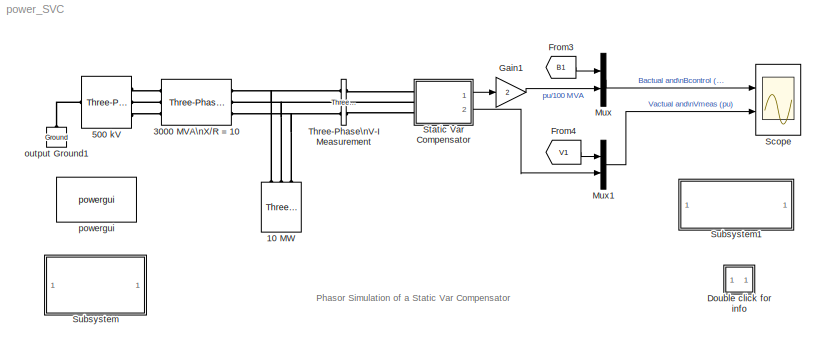
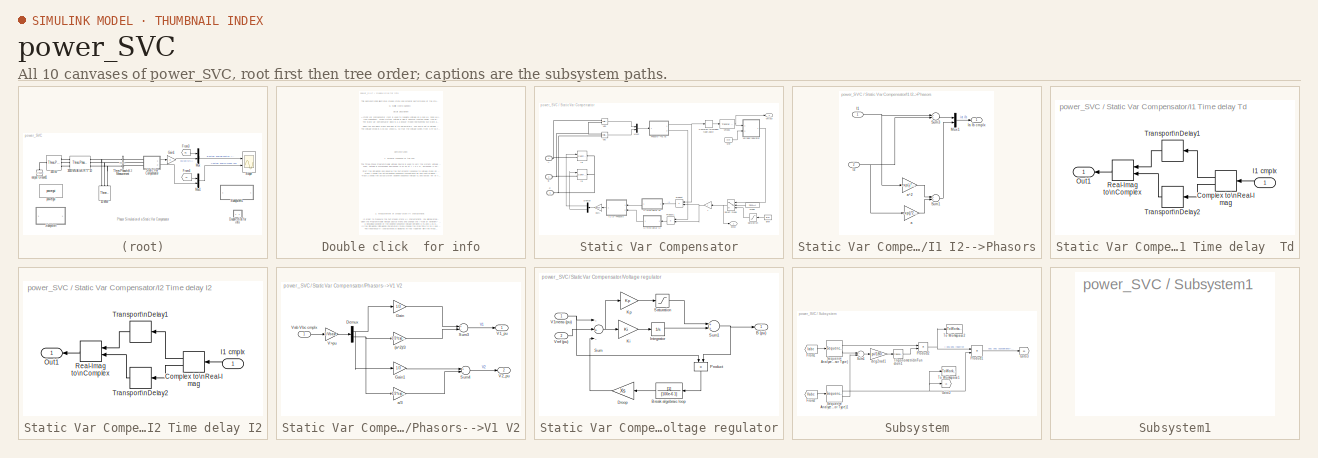
[diagram: thumbnail index - all 10 canvases of the model, root first then tree order]
MODEL power_SVC
KIND model
BLOCK [Reference] 10 MW  REF=powerlib/Elements/Three-Phase\nSeries RLC Load
  ActivePower = 10e6
  AttributesFormatString = \\n
  CapacitivePower = 0
  Configuration = Y (grounded)
  InductivePower = 0
  LConnTagsString = A|B|C
  LeftPortType = p1
  Measurements = None
  NominalFrequency = 60
  NominalVoltage = 500e3
  PhysicalDomain = powersysdomain
  Ports = [0, 0, 0, 0, 0, 3]
  RightPortType = p1
  SourceBlock = powerlib/Elements/Three-Phase\nSeries RLC Load
  SourceType = Three-Phase Series RLC Load
  SubClassName = unknown
BLOCK [Reference] 3000 MVA\nX//R = 10  REF=powerlib/Elements/Three-Phase\nSeries RLC Branch
  AttributesFormatString = \\n
  Capacitance = inf
  Inductance = 500e3^2/3000e6/(2*pi*60)
  LConnTagsString = A|B|C
  LeftPortType = p1
  Measurements = None
  PhysicalDomain = powersysdomain
  Ports = [0, 0, 0, 0, 0, 3, 3]
  RConnTagsString = A|B|C
  Resistance = 500e3^2/3000e6/10
  RightPortType = p1
  SourceBlock = powerlib/Elements/Three-Phase\nSeries RLC Branch
  SourceType = Three-Phase Series RLC Branch
  SubClassName = unknown
BLOCK [Reference] 500 kV  REF=powerlib/Electrical\nSources/Three-Phase\nProgrammable\nVoltage Source
  Amplitudes = [ 1  0.97  1.03  1]
  HarmonicA = [3 0.2 -25 0]
  HarmonicB = [2 0.15 35 2]
  HarmonicGeneration = off
  Ports = [0, 0, 0, 0, 0, 1, 3]
  PositiveSequence = [500e3  0 60]
  ShowPortLabels = on
  SourceBlock = powerlib/Electrical\nSources/Three-Phase\nProgrammable\nVoltage Source
  SourceType = Three-Phase Programmable Voltage Source
  TimeValues = [ 0  0.1 0.4  0.7]
  Timing = [0.05  3]
  VariationEntity = Amplitude
  VariationFrequency = 0.05
  VariationMagnitude = 0.25
  VariationPhaseA = off
  VariationRate = 10
  VariationStep = 0.5
  VariationTiming = [0 20]
  VariationType = Table of time-amplitude pairs
BLOCK [SubSystem] Double click  for info
  MaskDisplay = disp('?')
  MaskIconFrame = on
  MaskIconOpaque = on
  MaskIconRotate = none
  MaskIconUnits = autoscale
  MinAlgLoopOccurrences = off
  Ports = []
  RTWSystemCode = Auto
  TreatAsAtomicUnit = off
BLOCK [From] From3
  CloseFcn = tagdialog Close
  DialogController = Simulink.DDGSource
  GotoTag = B1
BLOCK [From] From4
  CloseFcn = tagdialog Close
  DialogController = Simulink.DDGSource
  GotoTag = V1
BLOCK [Gain] Gain1
  Gain = 2
BLOCK [Mux] Mux
  DisplayOption = bar
  Inputs = 2
  Ports = [2, 1]
BLOCK [Mux] Mux1
  DisplayOption = bar
  Inputs = 2
  Ports = [2, 1]
BLOCK [Scope] Scope
  DataFormat = StructureWithTime
  NumInputPorts = 2
  Ports = [2]
  SaveName = ScopeData1
  TimeRange = 1
  YMax = 1~1.08
  YMin = -1~0.96
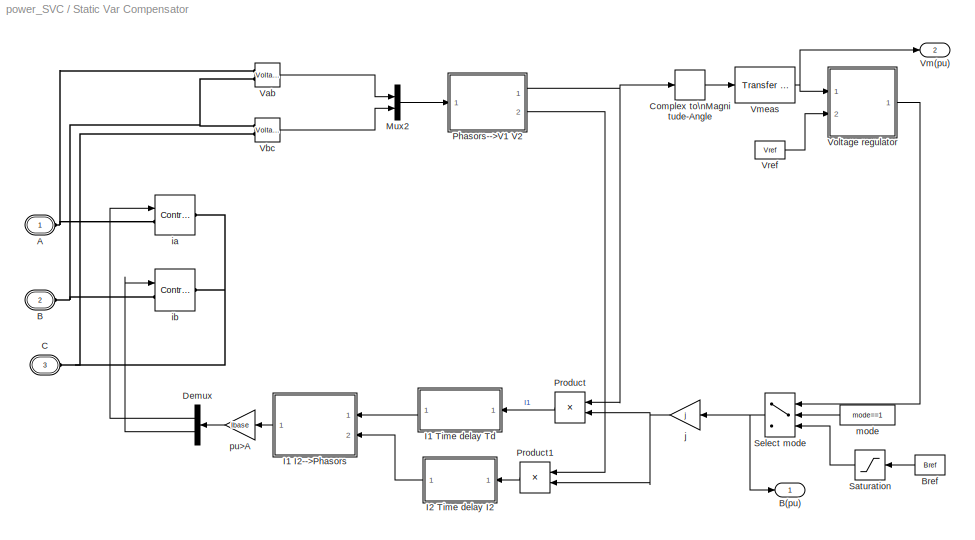
BLOCK [SubSystem] Static Var Compensator
  AncestorBlock = powerlib/Phasor\nElements/Static Var Compensator
  CloseFcn = %3phaseVImeasurement
  LoadFcn = find_system(gcs,'FollowLinks', 'on', 'LookUnderMasks', 'all');
  MaskCallbackString = powericon('psbcallbacks',gcb,'SVCblock');|||||||||
  MaskDescription = This block implements a  phasor model of a three-phase, three-wire Static Var Compensator (SVC).\n\nThe B output signal (SVC susceptance in pu/Pbase)  is the output of the voltage regulator or the reference susceptance Bref in var control mode.\nThe Vm output is the measured positive-sequence voltage (pu).
  MaskDisplay = \n
  MaskEnableString = on,on,on,on,on,on,on,on,on,on
  MaskHelp = web(psbhelp)
  MaskIconFrame = on
  MaskIconOpaque = on
  MaskIconRotate = none
  MaskIconUnits = autoscale
  MaskInitialization = Qc_nom=Qnom(1);\nQl_nom=Qnom(2);\nBmax=Qc_nom/Pbase;\nBmin=Ql_nom/Pbase;\nVbase=Vnom/sqrt(3)*sqrt(2);\nIbase=Pbase/Vnom/sqrt(3)*sqrt(2);\nKp=Kp_Ki(1);\nKi=Kp_Ki(2);;
  MaskPromptString = Mode of operation|Nominal voltage (Vrms Ph-Ph):|Reactive power limits [Qc(var>0)  Ql(var<0)]:|Three-phase base power Pbase (VA):|Reference voltage Vref  (pu):|Droop Xs (pu/Pbase):|Voltage regulator [Kp(puB/puV)  Ki(puB/puV/s)]: |Bref  for var control mode (pu/Pbase):|Time constant of voltage measurement system Tm (s):|Average time delay due to thyristor valves firing Td (s):
  MaskStyleString = popup(Voltage regulation|Var control (Fixed susceptance Bref)),edit,edit,edit,edit,edit,edit,edit,edit,edit
  MaskTabNameString = ,,,,,,,,,
  MaskToolTipString = on,on,on,on,on,on,on,on,on,on
  MaskTunableValueString = on,on,on,on,on,on,on,on,on,on
  MaskType = Static Var Compensator (Phasor Type)
  MaskValueString = Voltage regulation|500e3|[200e6  -100e6]|200e6|1.0|0.03|[0  300]|0.5|8e-3|4e-3
  MaskVarAliasString = ,,,,,,,,,
  MaskVariables = mode=@1;Vnom=@2;Qnom=@3;Pbase=@4;Vref=@5;Xs=@6;Kp_Ki=@7;Bref=@8;Tm=@9;Td=@10;
  MaskVisibilityString = on,on,on,on,on,on,on,off,on,on
  MinAlgLoopOccurrences = off
  Ports = [0, 2, 0, 0, 0, 3]
  RTWSystemCode = Auto
  TreatAsAtomicUnit = off
BLOCK [PMIOPort] Static Var Compensator/A
  Port = 1
  Side = Left
BLOCK [PMIOPort] Static Var Compensator/B
  Port = 2
  Side = Left
BLOCK [Outport] Static Var Compensator/B(pu)
  BusOutputAsStruct = off
  IconDisplay = Port number
BLOCK [Constant] Static Var Compensator/Bref
  Value = Bref
BLOCK [PMIOPort] Static Var Compensator/C
  Port = 3
  Side = Left
BLOCK [ComplexToMagnitudeAngle] Static Var Compensator/Complex to\nMagnitude-Angle
  Output = Magnitude
  Ports = [1, 1]
BLOCK [Demux] Static Var Compensator/Demux
  Outputs = 2
  Ports = [1, 2]
BLOCK [SubSystem] Static Var Compensator/I1 I2-->Phasors
  MinAlgLoopOccurrences = off
  Ports = [2, 1]
  RTWSystemCode = Auto
  TreatAsAtomicUnit = off
BLOCK [Inport] Static Var Compensator/I1 I2-->Phasors/I1
  IconDisplay = Port number
  LatchInput = off
  Port = 1
BLOCK [Inport] Static Var Compensator/I1 I2-->Phasors/I2
  IconDisplay = Port number
  LatchInput = off
  Port = 2
BLOCK [Outport] Static Var Compensator/I1 I2-->Phasors/Ia Ib cmplx
  BusOutputAsStruct = off
  IconDisplay = Port number
BLOCK [Mux] Static Var Compensator/I1 I2-->Phasors/Mux1
  DisplayOption = bar
  Inputs = 2
  Ports = [2, 1]
BLOCK [Sum] Static Var Compensator/I1 I2-->Phasors/Sum1
  Ports = [2, 1]
BLOCK [Sum] Static Var Compensator/I1 I2-->Phasors/Sum3
  Ports = [2, 1]
BLOCK [Gain] Static Var Compensator/I1 I2-->Phasors/a
  Gain = exp(j*2*pi/3)
BLOCK [Gain] Static Var Compensator/I1 I2-->Phasors/a^2
  Gain = exp(-j*2*pi/3)
BLOCK [SubSystem] Static Var Compensator/I1 Time delay  Td
  MinAlgLoopOccurrences = off
  Ports = [1, 1]
  RTWSystemCode = Auto
  TreatAsAtomicUnit = off
BLOCK [ComplexToRealImag] Static Var Compensator/I1 Time delay  Td/Complex to\nReal-Imag
  Output = Real and imag
  Ports = [1, 2]
BLOCK [Inport] Static Var Compensator/I1 Time delay  Td/I1 cmplx
  IconDisplay = Port number
  LatchInput = off
  Port = 1
BLOCK [Outport] Static Var Compensator/I1 Time delay  Td/Out1
  BusOutputAsStruct = off
  IconDisplay = Port number
BLOCK [RealImagToComplex] Static Var Compensator/I1 Time delay  Td/Real-Imag to\nComplex
  Input = Real and imag
  Ports = [2, 1]
BLOCK [TransportDelay] Static Var Compensator/I1 Time delay  Td/Transport\nDelay1
  DelayTime = Td
BLOCK [TransportDelay] Static Var Compensator/I1 Time delay  Td/Transport\nDelay2
  DelayTime = Td
BLOCK [SubSystem] Static Var Compensator/I2 Time delay I2
  MinAlgLoopOccurrences = off
  Ports = [1, 1]
  RTWSystemCode = Auto
  TreatAsAtomicUnit = off
BLOCK [ComplexToRealImag] Static Var Compensator/I2 Time delay I2/Complex to\nReal-Imag
  Output = Real and imag
  Ports = [1, 2]
BLOCK [Inport] Static Var Compensator/I2 Time delay I2/I1 cmplx
  IconDisplay = Port number
  LatchInput = off
  Port = 1
BLOCK [Outport] Static Var Compensator/I2 Time delay I2/Out1
  BusOutputAsStruct = off
  IconDisplay = Port number
BLOCK [RealImagToComplex] Static Var Compensator/I2 Time delay I2/Real-Imag to\nComplex
  Input = Real and imag
  Ports = [2, 1]
BLOCK [TransportDelay] Static Var Compensator/I2 Time delay I2/Transport\nDelay1
  DelayTime = Td
BLOCK [TransportDelay] Static Var Compensator/I2 Time delay I2/Transport\nDelay2
  DelayTime = Td
BLOCK [Mux] Static Var Compensator/Mux2
  DisplayOption = bar
  Inputs = 2
  Ports = [2, 1]
BLOCK [SubSystem] Static Var Compensator/Phasors-->V1 V2
  MinAlgLoopOccurrences = off
  Ports = [1, 2]
  RTWSystemCode = Auto
  TreatAsAtomicUnit = off
BLOCK [Gain] Static Var Compensator/Phasors-->V1 V2/(a^2)//3
  Gain = 1/3*exp(-j*2*pi/3)
BLOCK [Demux] Static Var Compensator/Phasors-->V1 V2/Demux
  Outputs = 2
  Ports = [1, 2]
BLOCK [Gain] Static Var Compensator/Phasors-->V1 V2/Gain
  Gain = 1/3
BLOCK [Gain] Static Var Compensator/Phasors-->V1 V2/Gain1
  Gain = 1/3
BLOCK [Sum] Static Var Compensator/Phasors-->V1 V2/Sum3
  Inputs = +-
  Ports = [2, 1]
BLOCK [Sum] Static Var Compensator/Phasors-->V1 V2/Sum4
  Inputs = +-
  Ports = [2, 1]
BLOCK [Outport] Static Var Compensator/Phasors-->V1 V2/V1_pu
  BusOutputAsStruct = off
  IconDisplay = Port number
BLOCK [Outport] Static Var Compensator/Phasors-->V1 V2/V2_pu
  BusOutputAsStruct = off
  IconDisplay = Port number
  Port = 2
BLOCK [Gain] Static Var Compensator/Phasors-->V1 V2/V>pu
  Gain = 1/Vbase
BLOCK [Inport] Static Var Compensator/Phasors-->V1 V2/Vab Vbc cmplx
  IconDisplay = Port number
  LatchInput = off
  Port = 1
BLOCK [Gain] Static Var Compensator/Phasors-->V1 V2/a//3
  Gain = 1/3*exp(j*2*pi/3)
BLOCK [Product] Static Var Compensator/Product
  Ports = [2, 1]
  RndMeth = Floor
BLOCK [Product] Static Var Compensator/Product1
  Ports = [2, 1]
  RndMeth = Floor
BLOCK [Saturate] Static Var Compensator/Saturation
  LowerLimit = Bmin
  UpperLimit = Bmax
BLOCK [Switch] Static Var Compensator/Select mode
  SaturateOnIntegerOverflow = off
  Threshold = 0.5
BLOCK [Reference] Static Var Compensator/Vab  REF=powerlib/Measurements/Voltage Measurement
  OutputType = Complex
  PSBequivalent = 0
  PhasorSimulation = on
  Ports = [0, 1, 0, 0, 0, 2]
  ShowPortLabels = on
  SourceBlock = powerlib/Measurements/Voltage Measurement
  SourceType = Voltage Measurement
BLOCK [Reference] Static Var Compensator/Vbc  REF=powerlib/Measurements/Voltage Measurement
  OutputType = Complex
  PSBequivalent = 0
  PhasorSimulation = on
  Ports = [0, 1, 0, 0, 0, 2]
  ShowPortLabels = on
  SourceBlock = powerlib/Measurements/Voltage Measurement
  SourceType = Voltage Measurement
BLOCK [Outport] Static Var Compensator/Vm(pu)
  BusOutputAsStruct = off
  IconDisplay = Port number
  Port = 2
BLOCK [Reference] Static Var Compensator/Vmeas  REF=simulink_extras/Additional\nLinear/Transfer Fcn\n(with initial outputs)
  D = [Tm  1]
  N = [1]
  Ports = [1, 1]
  ShowPortLabels = on
  SourceBlock = simulink_extras/Additional\nLinear/Transfer Fcn\n(with initial outputs)
  SourceType = Transfer Function with Initial Outputs
  U0 = Vref
  Y0 = Vref
BLOCK [SubSystem] Static Var Compensator/Voltage regulator
  MinAlgLoopOccurrences = off
  Ports = [2, 1]
  RTWSystemCode = Auto
  TreatAsAtomicUnit = off
BLOCK [Outport] Static Var Compensator/Voltage regulator/B (pu)
  BusOutputAsStruct = off
  IconDisplay = Port number
  InitialOutput = 0
BLOCK [TransferFcn] Static Var Compensator/Voltage regulator/Break algebraic loop
  Denominator = [100e-6 1]
BLOCK [Gain] Static Var Compensator/Voltage regulator/Droop
  Gain = Xs
BLOCK [Integrator] Static Var Compensator/Voltage regulator/Integrator
  LimitOutput = on
  LowerSaturationLimit = Bmin
  Ports = [1, 1]
  UpperSaturationLimit = Bmax
BLOCK [Gain] Static Var Compensator/Voltage regulator/Ki
  Gain = Ki
BLOCK [Gain] Static Var Compensator/Voltage regulator/Kp
  Gain = Kp
BLOCK [Product] Static Var Compensator/Voltage regulator/Product
  Ports = [2, 1]
  RndMeth = Floor
BLOCK [Saturate] Static Var Compensator/Voltage regulator/Saturation
  LowerLimit = Bmin
  UpperLimit = Bmax
BLOCK [Sum] Static Var Compensator/Voltage regulator/Sum
  Inputs = -+-
  Ports = [3, 1]
BLOCK [Sum] Static Var Compensator/Voltage regulator/Sum1
  InputSameDT = off
  OutDataTypeMode = Inherit via internal rule
  Ports = [2, 1]
BLOCK [Inport] Static Var Compensator/Voltage regulator/V1meas (pu)
  IconDisplay = Port number
  LatchInput = off
  Port = 1
BLOCK [Inport] Static Var Compensator/Voltage regulator/Vref (pu)
  IconDisplay = Port number
  LatchInput = off
  Port = 2
BLOCK [Constant] Static Var Compensator/Vref
  Value = Vref
BLOCK [Reference] Static Var Compensator/ia  REF=powerlib/Electrical\nSources/Controlled Current Source
  Amplitude = 0
  Description = source block
  Frequency = 0
  Initialize = off
  Measurements = None
  Phase = 0
  Ports = [1, 0, 0, 0, 0, 1, 1]
  ShowPortLabels = on
  SourceBlock = powerlib/Electrical\nSources/Controlled Current Source
  SourceType = AC
BLOCK [Reference] Static Var Compensator/ib  REF=powerlib/Electrical\nSources/Controlled Current Source
  Amplitude = 0
  Description = source block
  Frequency = 0
  Initialize = off
  Measurements = None
  Phase = 0
  Ports = [1, 0, 0, 0, 0, 1, 1]
  ShowPortLabels = on
  SourceBlock = powerlib/Electrical\nSources/Controlled Current Source
  SourceType = AC
BLOCK [Gain] Static Var Compensator/j
  Gain = j
BLOCK [Constant] Static Var Compensator/mode
  Value = mode==1
BLOCK [Gain] Static Var Compensator/pu>A
  Gain = Ibase
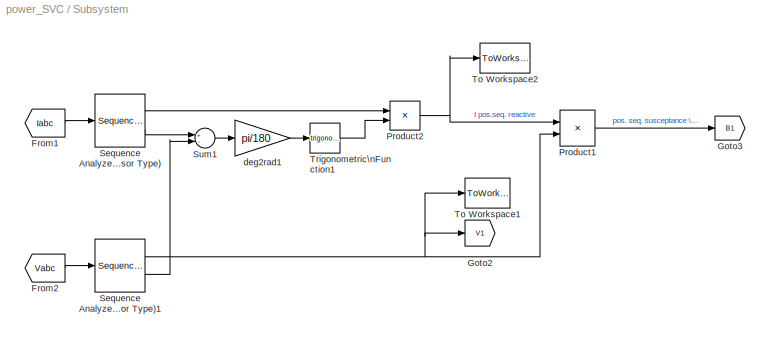
BLOCK [SubSystem] Subsystem
  MaskDisplay = disp('Signal Processing')
  MaskIconFrame = on
  MaskIconOpaque = on
  MaskIconRotate = none
  MaskIconUnits = autoscale
  MinAlgLoopOccurrences = off
  Ports = []
  RTWSystemCode = Auto
  TreatAsAtomicUnit = off
BLOCK [From] Subsystem/From1
  CloseFcn = tagdialog Close
  DialogController = Simulink.DDGSource
  GotoTag = Iabc
BLOCK [From] Subsystem/From2
  CloseFcn = tagdialog Close
  DialogController = Simulink.DDGSource
  GotoTag = Vabc
BLOCK [Goto] Subsystem/Goto2
  DialogController = Simulink.DDGSource
  GotoTag = V1
  TagVisibility = global
BLOCK [Goto] Subsystem/Goto3
  DialogController = Simulink.DDGSource
  GotoTag = B1
  TagVisibility = global
BLOCK [Product] Subsystem/Product1
  InputSameDT = off
  Inputs = */
  Ports = [2, 1]
  RndMeth = Floor
BLOCK [Product] Subsystem/Product2
  InputSameDT = off
  Inputs = **
  Ports = [2, 1]
  RndMeth = Floor
BLOCK [Reference] Subsystem/Sequence Analyzer\n(Phasor Type)  REF=powerlib_extras/Phasor\nLibrary/Sequence Analyzer\n(Phasor Type)
  Ports = [1, 2]
  ShowPortLabels = on
  SourceBlock = powerlib_extras/Phasor\nLibrary/Sequence Analyzer\n(Phasor Type)
  SourceType = Sequence Analyzer (Phasor Type)
  seq = Positive
BLOCK [Reference] Subsystem/Sequence Analyzer\n(Phasor Type)1  REF=powerlib_extras/Phasor\nLibrary/Sequence Analyzer\n(Phasor Type)
  Ports = [1, 2]
  ShowPortLabels = on
  SourceBlock = powerlib_extras/Phasor\nLibrary/Sequence Analyzer\n(Phasor Type)
  SourceType = Sequence Analyzer (Phasor Type)
  seq = Positive
BLOCK [Sum] Subsystem/Sum1
  InputSameDT = off
  Inputs = +-
  OutDataTypeMode = Inherit via internal rule
  Ports = [2, 1]
BLOCK [ToWorkspace] Subsystem/To Workspace1
  MaxDataPoints = inf
  SampleTime = -1
  SaveFormat = Array
  VariableName = V1
BLOCK [ToWorkspace] Subsystem/To Workspace2
  MaxDataPoints = inf
  SampleTime = -1
  SaveFormat = Array
  VariableName = I1_imag
BLOCK [Trigonometry] Subsystem/Trigonometric\nFunction1
  Ports = [1, 1]
BLOCK [Gain] Subsystem/deg2rad1
  Gain = pi/180
BLOCK [SubSystem] Subsystem1
  MaskDisplay = disp('Double click\\nto plot\\nV-I characteristic')
  MaskIconFrame = on
  MaskIconOpaque = on
  MaskIconRotate = none
  MaskIconUnits = autoscale
  MinAlgLoopOccurrences = off
  OpenFcn = open('power_SVC.fig')            \nif exist('I1_imag') & exist('V1')\n  hold on                        \n   plot(-I1_imag,V1)             \nend                              \n                                 \n                                 \n                                 \n
  Ports = []
  RTWSystemCode = Auto
  TreatAsAtomicUnit = off
BLOCK [Reference] Three-Phase\nV-I Measurement  REF=powerlib/Measurements/Three-Phase\nV-I Measurement
  CurrentMeasurement = yes
  Ipu = on
  LabelI = Iabc
  LabelV = Vabc
  OutputType = Complex
  PSBequivalent = 0
  Pbase = 100e6
  PhasorSimulation = on
  Ports = [0, 0, 0, 0, 0, 3, 3]
  SetLabelI = on
  SetLabelV = on
  ShowPortLabels = on
  SourceBlock = powerlib/Measurements/Three-Phase\nV-I Measurement
  SourceType = Three-Phase VI Measurement
  Vbase = 500e3
  VoltageMeasurement = phase-to-ground
  Vpu = on
BLOCK [Reference] output Ground1  REF=powerlib/Elements/Ground
  AttributesFormatString = \\n
  LConnTagsString = a
  LeftPortType = p1
  PhysicalDomain = powersysdomain
  Ports = [0, 0, 0, 0, 0, 1]
  RightPortType = p1
  SourceBlock = powerlib/Elements/Ground
  SourceType = Ground
  SubClassName = unknown
BLOCK [Reference] powergui  REF=powerlib/powergui
  DisplayStyle = 1
  Frange = [0:2:500]
  FreqAxis = off
  MaxFrequency = 1000
  Ports = []
  Priority = 2
  RmsSteady = 1
  ShowPortLabels = on
  SourceBlock = powerlib/powergui
  SourceType = PSB option menu block
  StartTime = 0.0
  Ts = 0
  Xlog = on
  Ylog = off
  ZoomFFT = on
  cycles = 1
  display = off
  echomessages = on
  frequency = 60
  frequencyindice = 1
  frequencyindicesteady = 1
  fundamental = 60
  methode = on
  save = off
  variable = ZData
ANNOTATION (root): Phasor Simulation of a Static Var Compensator
ANNOTATION Double click  for info: G. Sybille (Hydro-Quebec)
ANNOTATION Double click  for info: 1. Dynamic response of the SVC
ANNOTATION Double click  for info: 2. Measurement of steady-state V-I characteristic
ANNOTATION Double click  for info: A static var compensator (SVC) is used to regulate voltage on a 500 kV, 3000 MVA sytem. When system voltage is low the SVC generates reactive power\n(SVC capacitive). When system voltage is high it absorbs reactive power (SVC inductive). The SVC is rated +200 Mvar capacitive and 100 Mvar inductive. \nThe Static Var Compensator block is a a phasor model representing SVC static and dynamic character...<+647ch>
ANNOTATION Double click  for info: Circuit Description
ANNOTATION Double click  for info: Demonstration
ANNOTATION Double click  for info: In order to measure the SVC steady-state V-I characteristic, you will now program a slow variation of the source voltage.\nOpen the Programmable Voltage Source menu and change the \"Type of Variation\" parameter to \"Modulation\". The modulation parameters are set to apply\na sinusoidal variation of the positive-sequence voltage between 0.75 and 1.25 pu in 20 seconds.\nIn the Simulation->Simulatio...<+240ch>
ANNOTATION Double click  for info: The Three-Phase Programmable Voltage Source is used to vary the system voltage and observe the SVC performance. Initially the source is generating nominal voltage.\nThen, voltage is successively decreased (0.97 pu at t = 0.1 s), increased (1.03 pu at t = 0.4 s) and finally returned to nominal voltage (1 pu at t = 0.7 s).\n\nStart the simulation and observe the SVC dynamic response to voltage steps...<+916ch>
ANNOTATION Double click  for info: This demonstration illustrates steady-state and dynamic performance of the static var compensator (SVC) phasor model
LINE From3:1 -> Mux:1
LINE From4:1 -> Mux1:1
LINE Gain1:1 -> Mux:2
LINE Mux1:1 -> Scope:2
LINE Mux:1 -> Scope:1
LINE Static Var Compensator/Bref:1 -> Static Var Compensator/Saturation:1
LINE Static Var Compensator/Complex to\nMagnitude-Angle:1 -> Static Var Compensator/Vmeas:1
LINE Static Var Compensator/Demux:1 -> Static Var Compensator/ia:1
LINE Static Var Compensator/Demux:2 -> Static Var Compensator/ib:1
NET Static Var Compensator/I1 I2-->Phasors/I1:1 -> Static Var Compensator/I1 I2-->Phasors/Sum3:1, Static Var Compensator/I1 I2-->Phasors/a^2:1
NET Static Var Compensator/I1 I2-->Phasors/I2:1 -> Static Var Compensator/I1 I2-->Phasors/Sum3:2, Static Var Compensator/I1 I2-->Phasors/a:1
LINE Static Var Compensator/I1 I2-->Phasors/Mux1:1 -> Static Var Compensator/I1 I2-->Phasors/Ia Ib cmplx:1
LINE Static Var Compensator/I1 I2-->Phasors/Sum1:1 -> Static Var Compensator/I1 I2-->Phasors/Mux1:2
LINE Static Var Compensator/I1 I2-->Phasors/Sum3:1 -> Static Var Compensator/I1 I2-->Phasors/Mux1:1
LINE Static Var Compensator/I1 I2-->Phasors/a:1 -> Static Var Compensator/I1 I2-->Phasors/Sum1:2
LINE Static Var Compensator/I1 I2-->Phasors/a^2:1 -> Static Var Compensator/I1 I2-->Phasors/Sum1:1
LINE Static Var Compensator/I1 I2-->Phasors:1 -> Static Var Compensator/pu>A:1
LINE Static Var Compensator/I1 Time delay  Td/Complex to\nReal-Imag:1 -> Static Var Compensator/I1 Time delay  Td/Transport\nDelay1:1
LINE Static Var Compensator/I1 Time delay  Td/Complex to\nReal-Imag:2 -> Static Var Compensator/I1 Time delay  Td/Transport\nDelay2:1
LINE Static Var Compensator/I1 Time delay  Td/I1 cmplx:1 -> Static Var Compensator/I1 Time delay  Td/Complex to\nReal-Imag:1
LINE Static Var Compensator/I1 Time delay  Td/Real-Imag to\nComplex:1 -> Static Var Compensator/I1 Time delay  Td/Out1:1
LINE Static Var Compensator/I1 Time delay  Td/Transport\nDelay1:1 -> Static Var Compensator/I1 Time delay  Td/Real-Imag to\nComplex:1
LINE Static Var Compensator/I1 Time delay  Td/Transport\nDelay2:1 -> Static Var Compensator/I1 Time delay  Td/Real-Imag to\nComplex:2
LINE Static Var Compensator/I1 Time delay  Td:1 -> Static Var Compensator/I1 I2-->Phasors:1
LINE Static Var Compensator/I2 Time delay I2/Complex to\nReal-Imag:1 -> Static Var Compensator/I2 Time delay I2/Transport\nDelay1:1
LINE Static Var Compensator/I2 Time delay I2/Complex to\nReal-Imag:2 -> Static Var Compensator/I2 Time delay I2/Transport\nDelay2:1
LINE Static Var Compensator/I2 Time delay I2/I1 cmplx:1 -> Static Var Compensator/I2 Time delay I2/Complex to\nReal-Imag:1
LINE Static Var Compensator/I2 Time delay I2/Real-Imag to\nComplex:1 -> Static Var Compensator/I2 Time delay I2/Out1:1
LINE Static Var Compensator/I2 Time delay I2/Transport\nDelay1:1 -> Static Var Compensator/I2 Time delay I2/Real-Imag to\nComplex:1
LINE Static Var Compensator/I2 Time delay I2/Transport\nDelay2:1 -> Static Var Compensator/I2 Time delay I2/Real-Imag to\nComplex:2
LINE Static Var Compensator/I2 Time delay I2:1 -> Static Var Compensator/I1 I2-->Phasors:2
LINE Static Var Compensator/Mux2:1 -> Static Var Compensator/Phasors-->V1 V2:1
LINE Static Var Compensator/Phasors-->V1 V2/(a^2)//3:1 -> Static Var Compensator/Phasors-->V1 V2/Sum3:2
NET Static Var Compensator/Phasors-->V1 V2/Demux:1 -> Static Var Compensator/Phasors-->V1 V2/Gain1:1, Static Var Compensator/Phasors-->V1 V2/Gain:1
NET Static Var Compensator/Phasors-->V1 V2/Demux:2 -> Static Var Compensator/Phasors-->V1 V2/(a^2)//3:1, Static Var Compensator/Phasors-->V1 V2/a//3:1
LINE Static Var Compensator/Phasors-->V1 V2/Gain1:1 -> Static Var Compensator/Phasors-->V1 V2/Sum4:1
LINE Static Var Compensator/Phasors-->V1 V2/Gain:1 -> Static Var Compensator/Phasors-->V1 V2/Sum3:1
LINE Static Var Compensator/Phasors-->V1 V2/Sum3:1 -> Static Var Compensator/Phasors-->V1 V2/V1_pu:1
LINE Static Var Compensator/Phasors-->V1 V2/Sum4:1 -> Static Var Compensator/Phasors-->V1 V2/V2_pu:1
LINE Static Var Compensator/Phasors-->V1 V2/V>pu:1 -> Static Var Compensator/Phasors-->V1 V2/Demux:1
LINE Static Var Compensator/Phasors-->V1 V2/Vab Vbc cmplx:1 -> Static Var Compensator/Phasors-->V1 V2/V>pu:1
LINE Static Var Compensator/Phasors-->V1 V2/a//3:1 -> Static Var Compensator/Phasors-->V1 V2/Sum4:2
NET Static Var Compensator/Phasors-->V1 V2:1 -> Static Var Compensator/Complex to\nMagnitude-Angle:1, Static Var Compensator/Product:1
LINE Static Var Compensator/Phasors-->V1 V2:2 -> Static Var Compensator/Product1:1
LINE Static Var Compensator/Product1:1 -> Static Var Compensator/I2 Time delay I2:1
LINE Static Var Compensator/Product:1 -> Static Var Compensator/I1 Time delay  Td:1
LINE Static Var Compensator/Saturation:1 -> Static Var Compensator/Select mode:3
NET Static Var Compensator/Select mode:1 -> Static Var Compensator/B(pu):1, Static Var Compensator/j:1
LINE Static Var Compensator/Vab:1 -> Static Var Compensator/Mux2:1
LINE Static Var Compensator/Vbc:1 -> Static Var Compensator/Mux2:2
NET Static Var Compensator/Vmeas:1 -> Static Var Compensator/Vm(pu):1, Static Var Compensator/Voltage regulator:1
LINE Static Var Compensator/Voltage regulator/Break algebraic loop:1 -> Static Var Compensator/Voltage regulator/Droop:1
LINE Static Var Compensator/Voltage regulator/Droop:1 -> Static Var Compensator/Voltage regulator/Sum:3
LINE Static Var Compensator/Voltage regulator/Integrator:1 -> Static Var Compensator/Voltage regulator/Sum1:2
LINE Static Var Compensator/Voltage regulator/Ki:1 -> Static Var Compensator/Voltage regulator/Integrator:1
LINE Static Var Compensator/Voltage regulator/Kp:1 -> Static Var Compensator/Voltage regulator/Saturation:1
LINE Static Var Compensator/Voltage regulator/Product:1 -> Static Var Compensator/Voltage regulator/Break algebraic loop:1
LINE Static Var Compensator/Voltage regulator/Saturation:1 -> Static Var Compensator/Voltage regulator/Sum1:1
NET Static Var Compensator/Voltage regulator/Sum1:1 -> Static Var Compensator/Voltage regulator/B (pu):1, Static Var Compensator/Voltage regulator/Product:2
NET Static Var Compensator/Voltage regulator/Sum:1 -> Static Var Compensator/Voltage regulator/Ki:1, Static Var Compensator/Voltage regulator/Kp:1
NET Static Var Compensator/Voltage regulator/V1meas (pu):1 -> Static Var Compensator/Voltage regulator/Product:1, Static Var Compensator/Voltage regulator/Sum:1
LINE Static Var Compensator/Voltage regulator/Vref (pu):1 -> Static Var Compensator/Voltage regulator/Sum:2
LINE Static Var Compensator/Voltage regulator:1 -> Static Var Compensator/Select mode:1
LINE Static Var Compensator/Vref:1 -> Static Var Compensator/Voltage regulator:2
NET Static Var Compensator/j:1 -> Static Var Compensator/Product1:2, Static Var Compensator/Product:2
LINE Static Var Compensator/mode:1 -> Static Var Compensator/Select mode:2
LINE Static Var Compensator/pu>A:1 -> Static Var Compensator/Demux:1
LINE Static Var Compensator:1 -> Gain1:1
LINE Static Var Compensator:2 -> Mux1:2
LINE Subsystem/From1:1 -> Subsystem/Sequence Analyzer\n(Phasor Type):1
LINE Subsystem/From2:1 -> Subsystem/Sequence Analyzer\n(Phasor Type)1:1
LINE Subsystem/Product1:1 -> Subsystem/Goto3:1
NET Subsystem/Product2:1 -> Subsystem/Product1:1, Subsystem/To Workspace2:1
NET Subsystem/Sequence Analyzer\n(Phasor Type)1:1 -> Subsystem/Goto2:1, Subsystem/Product1:2, Subsystem/To Workspace1:1
LINE Subsystem/Sequence Analyzer\n(Phasor Type)1:2 -> Subsystem/Sum1:2
LINE Subsystem/Sequence Analyzer\n(Phasor Type):1 -> Subsystem/Product2:1
LINE Subsystem/Sequence Analyzer\n(Phasor Type):2 -> Subsystem/Sum1:1
LINE Subsystem/Sum1:1 -> Subsystem/deg2rad1:1
LINE Subsystem/Trigonometric\nFunction1:1 -> Subsystem/Product2:2
LINE Subsystem/deg2rad1:1 -> Subsystem/Trigonometric\nFunction1:1
PNET net1: 10 MW:LConn1 -- 3000 MVA\nX//R = 10:RConn1 -- Three-Phase\nV-I Measurement:LConn1
PNET net2: 10 MW:LConn2 -- 3000 MVA\nX//R = 10:RConn2 -- Three-Phase\nV-I Measurement:LConn2
PNET net3: 10 MW:LConn3 -- 3000 MVA\nX//R = 10:RConn3 -- Three-Phase\nV-I Measurement:LConn3
PLINE 3000 MVA\nX//R = 10:LConn1 -- 500 kV:RConn1
PLINE 3000 MVA\nX//R = 10:LConn2 -- 500 kV:RConn2
PLINE 3000 MVA\nX//R = 10:LConn3 -- 500 kV:RConn3
PLINE 500 kV:LConn1 -- output Ground1:LConn1
PNET net4: Static Var Compensator/A:RConn1 -- Static Var Compensator/Vab:LConn1 -- Static Var Compensator/ia:LConn1
PNET net5: Static Var Compensator/B:RConn1 -- Static Var Compensator/Vab:LConn2 -- Static Var Compensator/Vbc:LConn1 -- Static Var Compensator/ib:LConn1
PNET net6: Static Var Compensator/C:RConn1 -- Static Var Compensator/Vbc:LConn2 -- Static Var Compensator/ia:RConn1 -- Static Var Compensator/ib:RConn1
PLINE Static Var Compensator:LConn1 -- Three-Phase\nV-I Measurement:RConn1
PLINE Static Var Compensator:LConn2 -- Three-Phase\nV-I Measurement:RConn2
PLINE Static Var Compensator:LConn3 -- Three-Phase\nV-I Measurement:RConn3
note: NET lines group one-source signal fan-out (src -> all destinations, sorted); 1:1 wires keep LINE; PNET lines group multi-terminal physical nets as a canonical sorted terminal list (undirected conserving connections); 2-terminal nets keep the pairwise PLINE form
